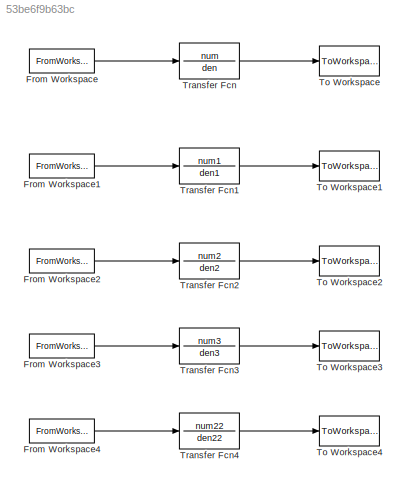
MODEL slx_53be6f9b63bc
KIND model
BLOCK [FromWorkspace] From Workspace
  SampleTime = 0
  VariableName = in
  ZeroCross = on
BLOCK [FromWorkspace] From Workspace1
  SampleTime = 0
  VariableName = in
  ZeroCross = on
BLOCK [FromWorkspace] From Workspace2
  SampleTime = 0
  VariableName = in
  ZeroCross = on
BLOCK [FromWorkspace] From Workspace3
  SampleTime = 0
  VariableName = in
  ZeroCross = on
BLOCK [FromWorkspace] From Workspace4
  SampleTime = 0
  VariableName = in
  ZeroCross = on
BLOCK [ToWorkspace] To Workspace
  FixptAsFi = on
  MaxDataPoints = inf
  Ports = [1]
  SampleTime = 9.07e-5
  SaveFormat = Structure With Time
  VariableName = filtrada
BLOCK [ToWorkspace] To Workspace1
  FixptAsFi = on
  MaxDataPoints = inf
  Ports = [1]
  SampleTime = 9.07e-5
  SaveFormat = Structure With Time
  VariableName = filtrada1
BLOCK [ToWorkspace] To Workspace2
  FixptAsFi = on
  MaxDataPoints = inf
  Ports = [1]
  SampleTime = 9.07e-5
  SaveFormat = Structure With Time
  VariableName = filtrada2
BLOCK [ToWorkspace] To Workspace3
  FixptAsFi = on
  MaxDataPoints = inf
  Ports = [1]
  SampleTime = 9.07e-5
  SaveFormat = Structure With Time
  VariableName = filtrada3
BLOCK [ToWorkspace] To Workspace4
  FixptAsFi = on
  MaxDataPoints = inf
  Ports = [1]
  SampleTime = 9.07e-5
  SaveFormat = Structure With Time
  VariableName = filtrada22
BLOCK [TransferFcn] Transfer Fcn
  Denominator = den
  Numerator = num
BLOCK [TransferFcn] Transfer Fcn1
  Denominator = den1
  Numerator = num1
BLOCK [TransferFcn] Transfer Fcn2
  Denominator = den2
  Numerator = num2
BLOCK [TransferFcn] Transfer Fcn3
  Denominator = den3
  Numerator = num3
BLOCK [TransferFcn] Transfer Fcn4
  Denominator = den22
  Numerator = num22
LINE From Workspace1:1 -> Transfer Fcn1:1
LINE From Workspace2:1 -> Transfer Fcn2:1
LINE From Workspace3:1 -> Transfer Fcn3:1
LINE From Workspace4:1 -> Transfer Fcn4:1
LINE From Workspace:1 -> Transfer Fcn:1
LINE Transfer Fcn1:1 -> To Workspace1:1
LINE Transfer Fcn2:1 -> To Workspace2:1
LINE Transfer Fcn3:1 -> To Workspace3:1
LINE Transfer Fcn4:1 -> To Workspace4:1
LINE Transfer Fcn:1 -> To Workspace:1
